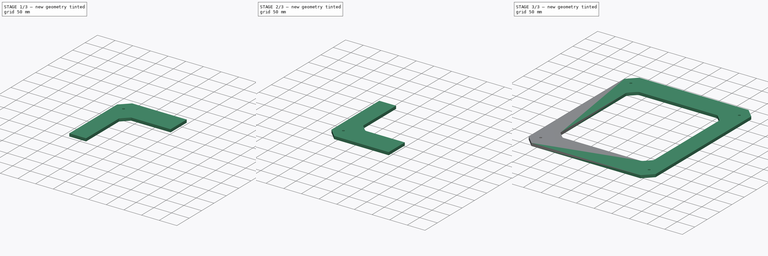
[diagram: build sequence overview — one tinted view per stage of 3, left to right]
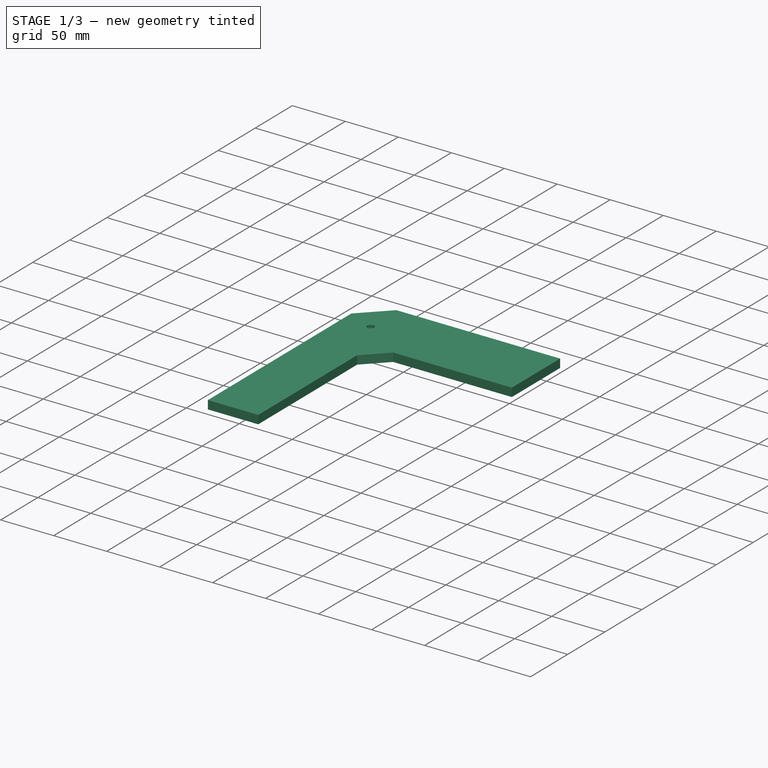
[diagram: stage 1 of 3 — iso view after this stage's code; geometry added in this stage tinted green]
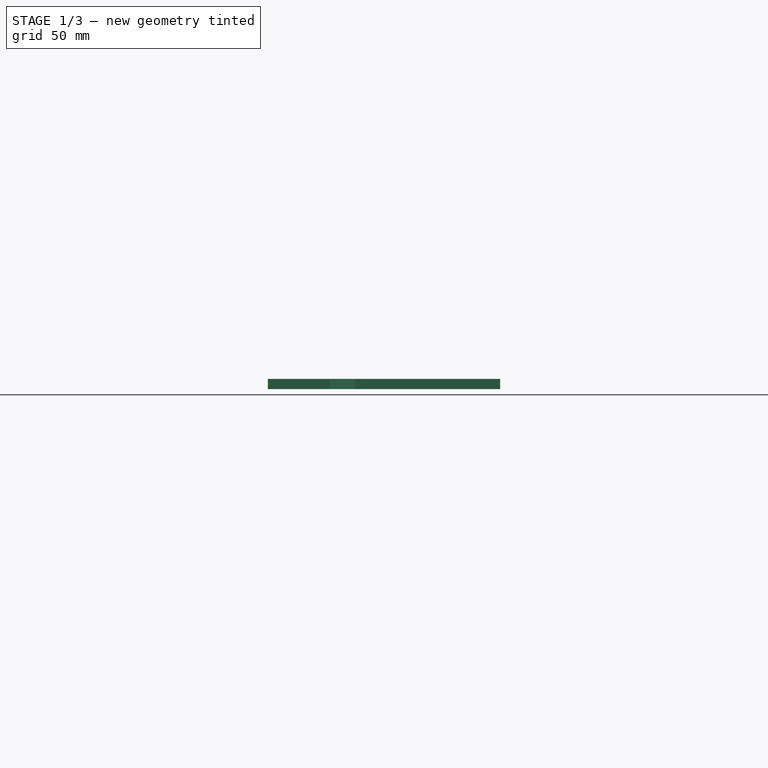
[diagram: stage 1 of 3 — front view after this stage's code; geometry added in this stage tinted green]
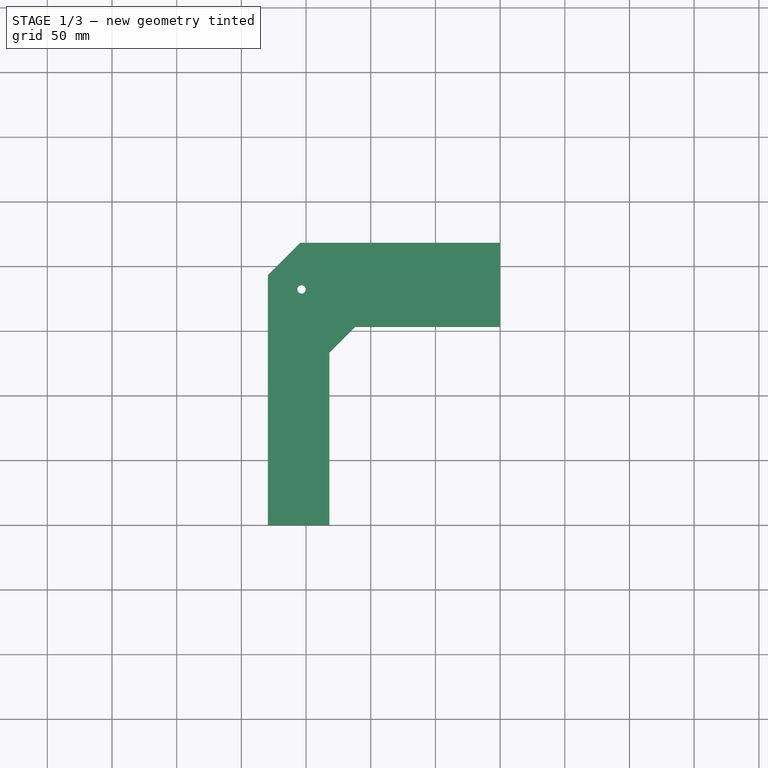
[diagram: stage 1 of 3 — top view after this stage's code; geometry added in this stage tinted green]
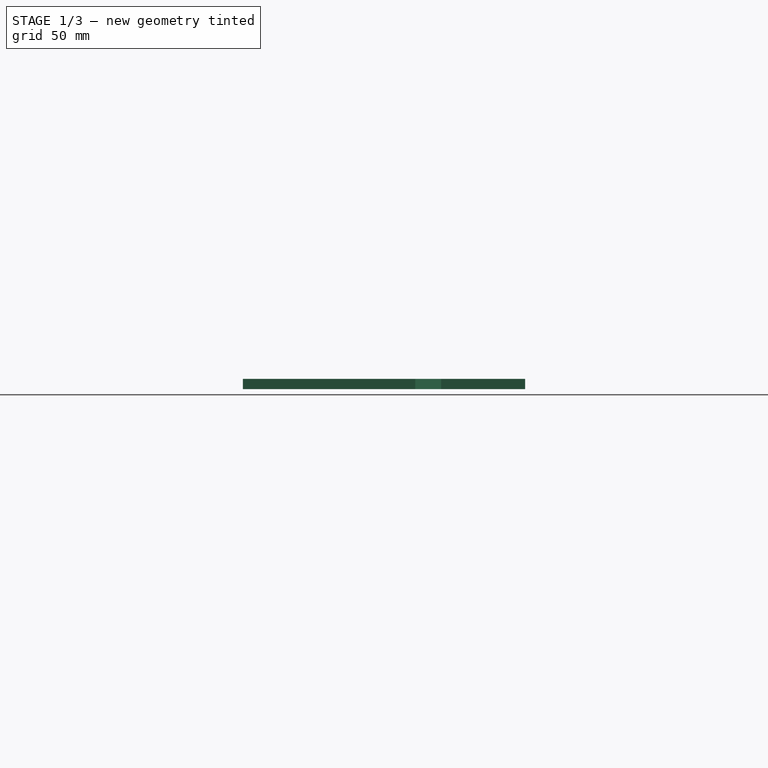
[diagram: stage 1 of 3 — right view after this stage's code; geometry added in this stage tinted green]
FCSTD DOCUMENT  (FreeCAD 0.14R3310 (Git))
Label: LATERAL IZQUIERDO (MARCO EXTERIOR)
License: CC-BY 3.0
LicenseURL: http://creativecommons.org/licenses/by/3.0/
objects: PartDesign::Chamfer×2, Part::Mirroring×2, Part::MultiFuse×2, Sketcher::SketchObject×1, PartDesign::Pad×1, PartDesign::Fillet×1
note: 10 computed .brp shape members not serialized (recipe doc carries the construction recipe); baked Part::Feature solids carry a one-line shape summary decoded from their .brp

FEATURE [Sketcher::SketchObject] Sketch
  sketch-geometry (7):
    g0: LineSegment StartX=0 StartY=218.25 StartZ=0 EndX=-179.5 EndY=218.25 EndZ=0
    g1: LineSegment StartX=-179.5 StartY=218.25 StartZ=0 EndX=-179.5 EndY=0 EndZ=0
    g2: Circle CenterX=-153.5 CenterY=182.25 CenterZ=0 NormalX=0 NormalY=0 NormalZ=1 Radius=3.25
    g3: LineSegment StartX=0 StartY=153.25 StartZ=0 EndX=-132 EndY=153.25 EndZ=0
    g4: LineSegment StartX=-132 StartY=153.25 StartZ=0 EndX=-132 EndY=0 EndZ=0
    g5: LineSegment StartX=0 StartY=218.25 StartZ=0 EndX=0 EndY=153.25 EndZ=0
    g6: LineSegment StartX=-132 StartY=0 StartZ=0 EndX=-179.5 EndY=0 EndZ=0
  constraints (21):
    c: PointOnObject(g0,g-2)
    c: Horizontal(g0)
    c: Coincident(g1,g0)
    c: PointOnObject(g1,g-1)
    c: Vertical(g1)
    c: PointOnObject(g3,g-2)
    c: Horizontal(g3)
    c: Coincident(g4,g3)
    c: PointOnObject(g4,g-1)
    c: Vertical(g4)
    c: Distance(g0) = 179.5
    c: DistanceY(g1) = -218.25
    c: Radius(g2) = 3.25
    c: Distance(g2,g0) = 36
    c: Distance(g2,g1) = 26
    c: Distance(g4) = 153.25
    c: Distance(g3) = 132
    c: Coincident(g5,g0)
    c: Coincident(g5,g3)
    c: Coincident(g6,g4)
    c: Coincident(g6,g1)
FEATURE [PartDesign::Pad] Pad
  Length = 8
  Length2 = 100
  Sketch = -> Sketch
  Type = 0
FEATURE [PartDesign::Chamfer] Chamfer
  Base = -> Pad [Edge5]
  Size = 25
FEATURE [PartDesign::Chamfer] Chamfer001
  Base = -> Chamfer [Edge22]
  Size = 20
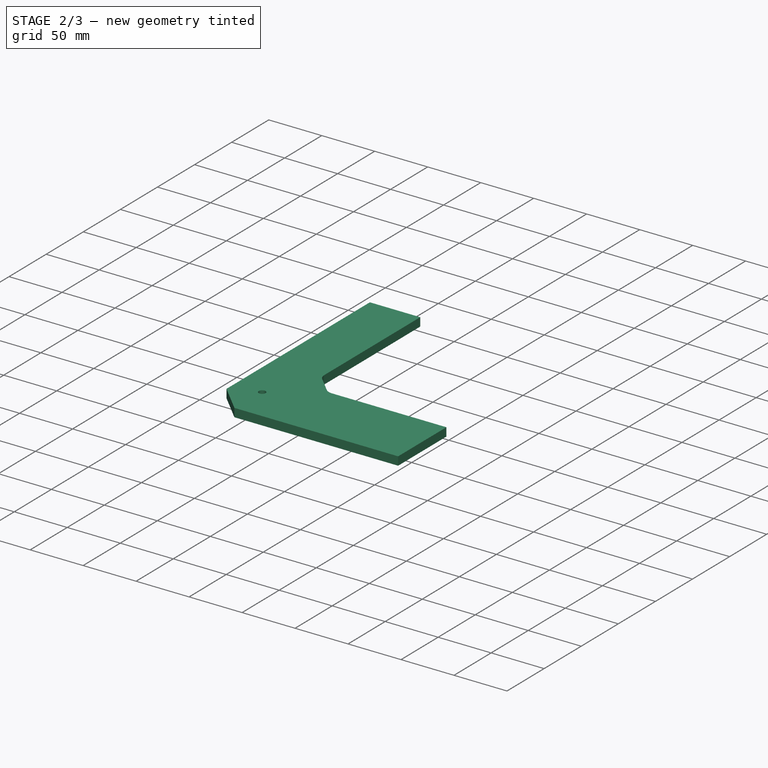
[diagram: stage 2 of 3 — iso view after this stage's code; geometry added in this stage tinted green]
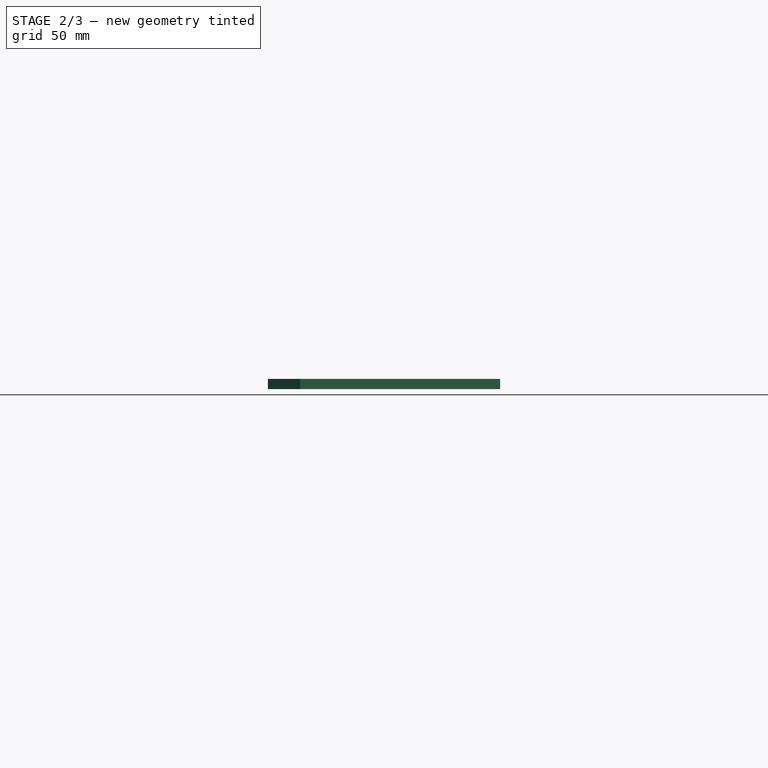
[diagram: stage 2 of 3 — front view after this stage's code; geometry added in this stage tinted green]
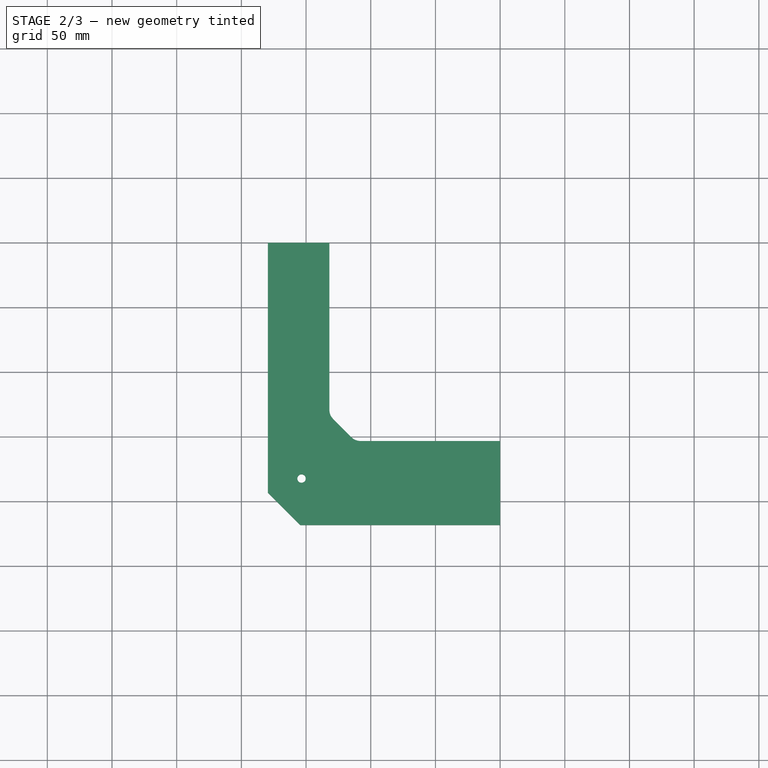
[diagram: stage 2 of 3 — top view after this stage's code; geometry added in this stage tinted green]
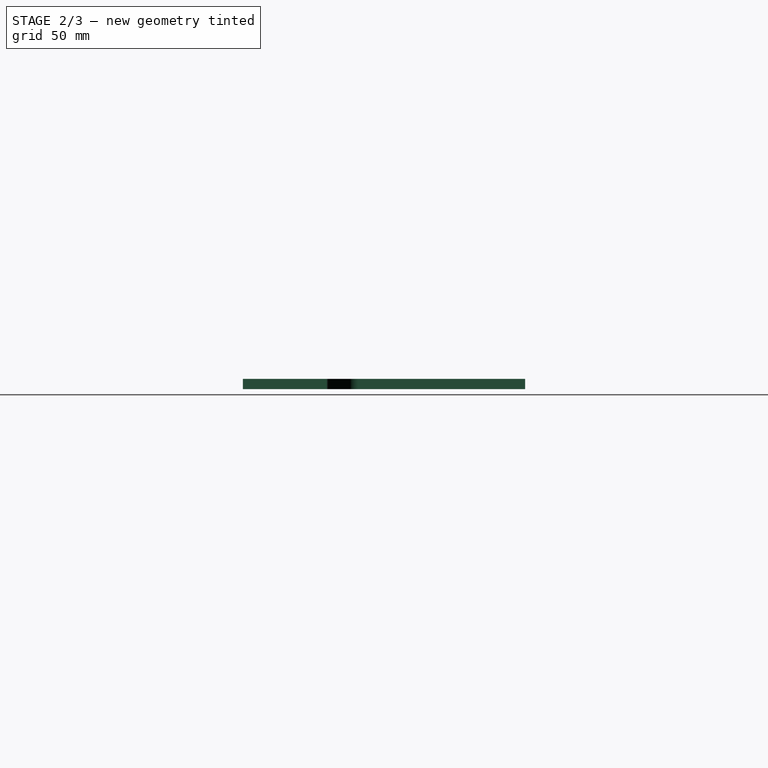
[diagram: stage 2 of 3 — right view after this stage's code; geometry added in this stage tinted green]
FEATURE [PartDesign::Fillet] Fillet
  Base = -> Chamfer001 [Edge10,Edge13]
  Radius = 10
FEATURE [Part::Mirroring] Part__Mirroring  label="Fillet (Mirror #1)"
  Base = (0,0,0)
  Normal = (0,1,0)
  Source = -> Fillet
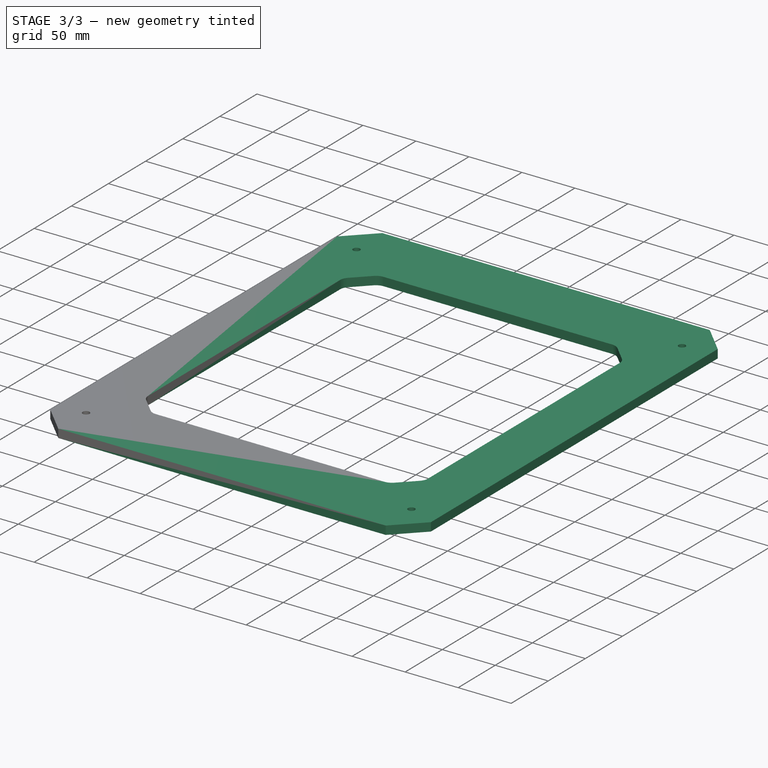
[diagram: stage 3 of 3 — iso view after this stage's code; geometry added in this stage tinted green]
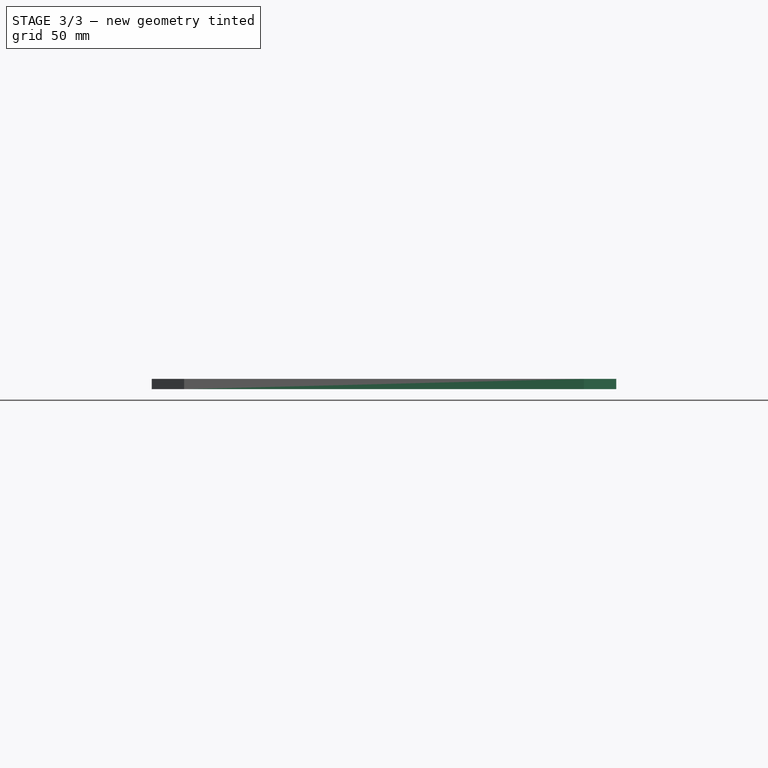
[diagram: stage 3 of 3 — front view after this stage's code; geometry added in this stage tinted green]
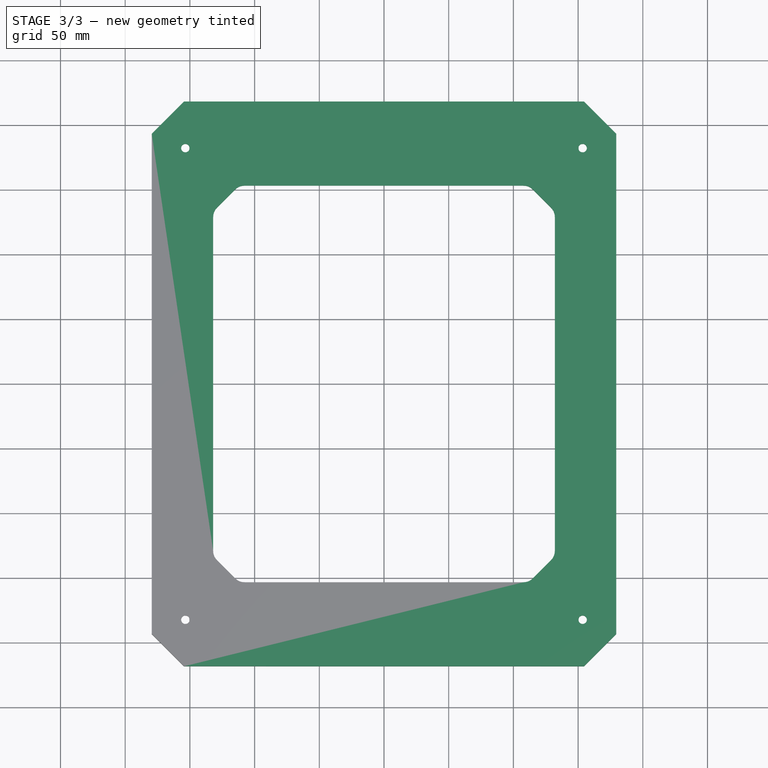
[diagram: stage 3 of 3 — top view after this stage's code; geometry added in this stage tinted green]
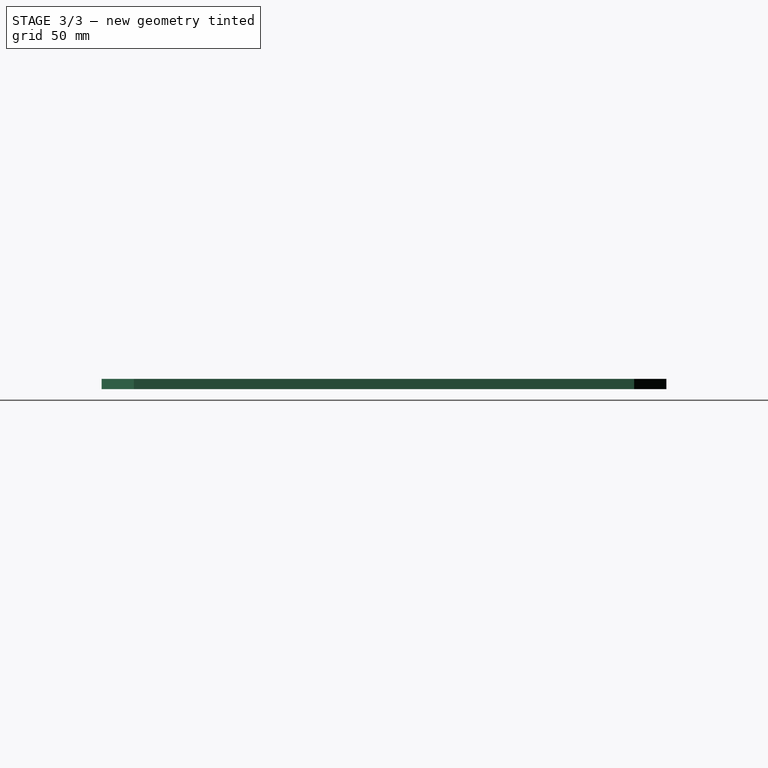
[diagram: stage 3 of 3 — right view after this stage's code; geometry added in this stage tinted green]
FEATURE [Part::MultiFuse] Fusion
  Shapes = -> [Fillet,Part__Mirroring]
FEATURE [Part::Mirroring] Part__Mirroring001  label="Fusion (Mirror #2)"
  Base = (0,0,0)
  Normal = (1,0,0)
  Source = -> Fusion
FEATURE [Part::MultiFuse] Fusion001
  Shapes = -> [Part__Mirroring001,Fusion]
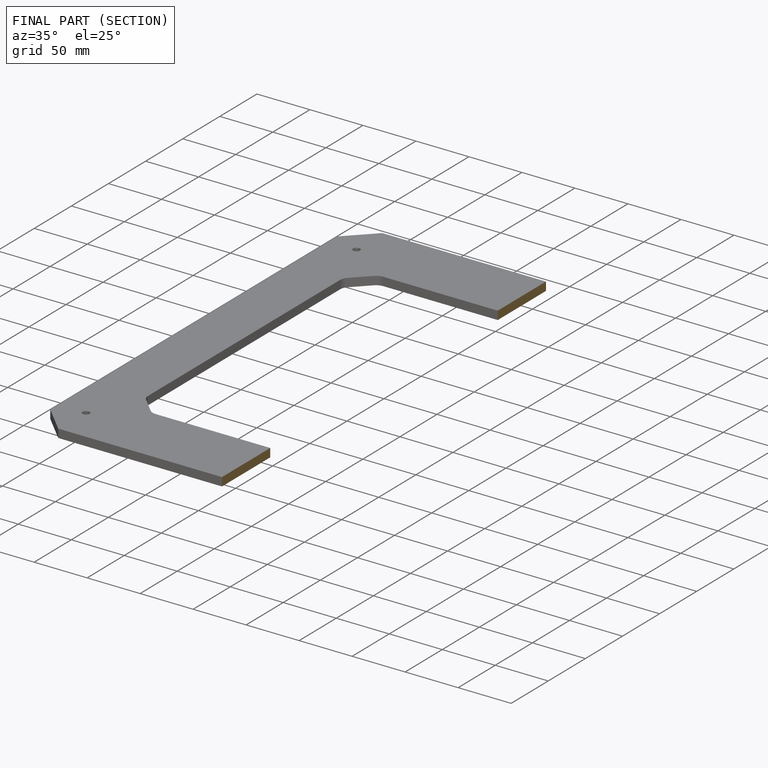
[diagram: finished part — half-section view (interior)]
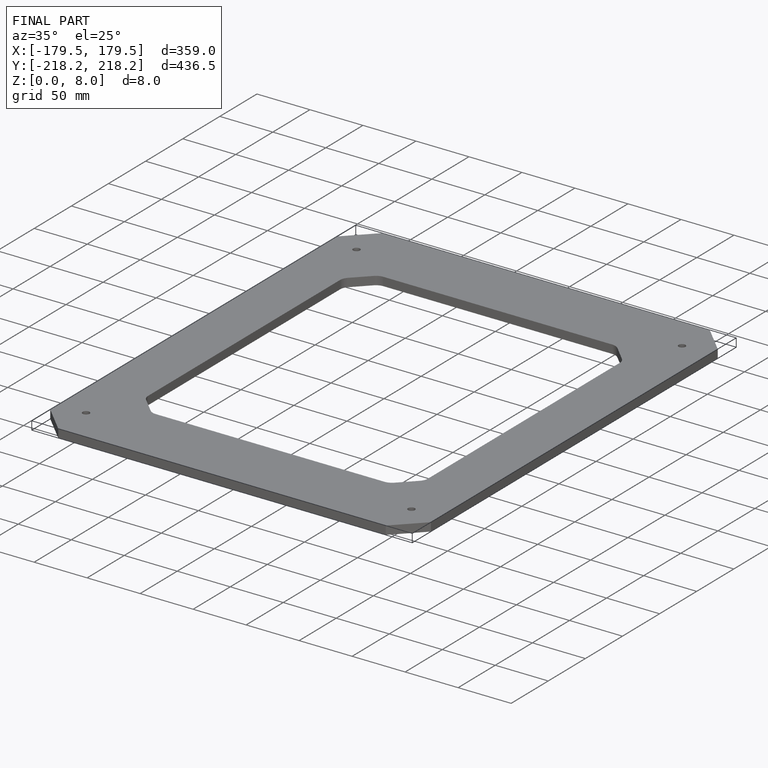
[diagram: finished part — iso view with bounding-box wireframe]
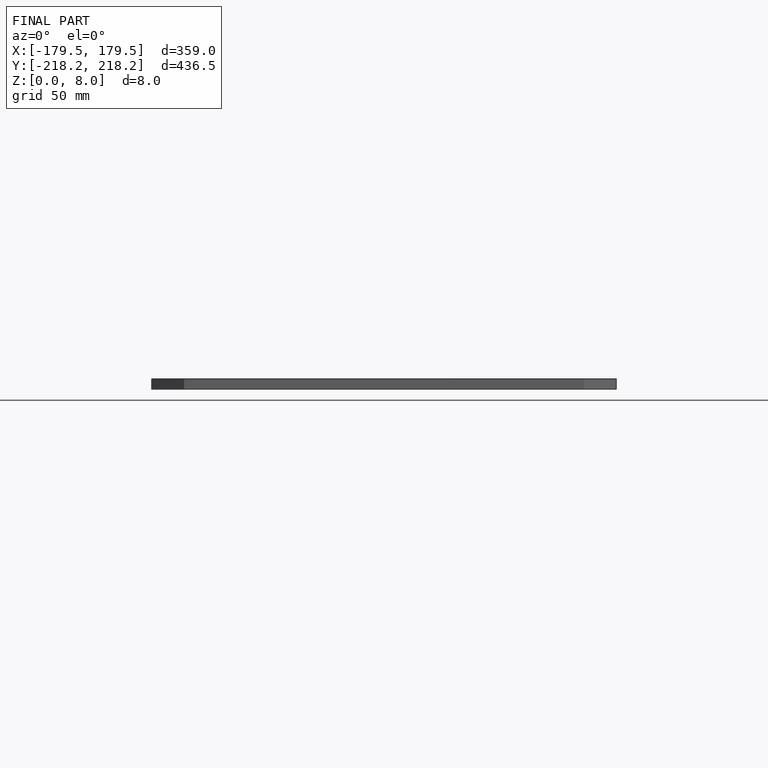
[diagram: finished part — front view with bounding-box wireframe]
